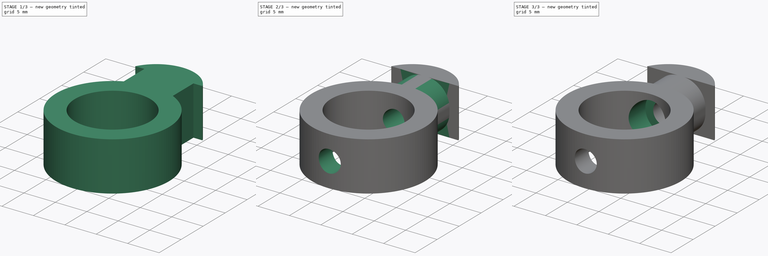
[diagram: build sequence overview — one tinted view per stage of 3, left to right]
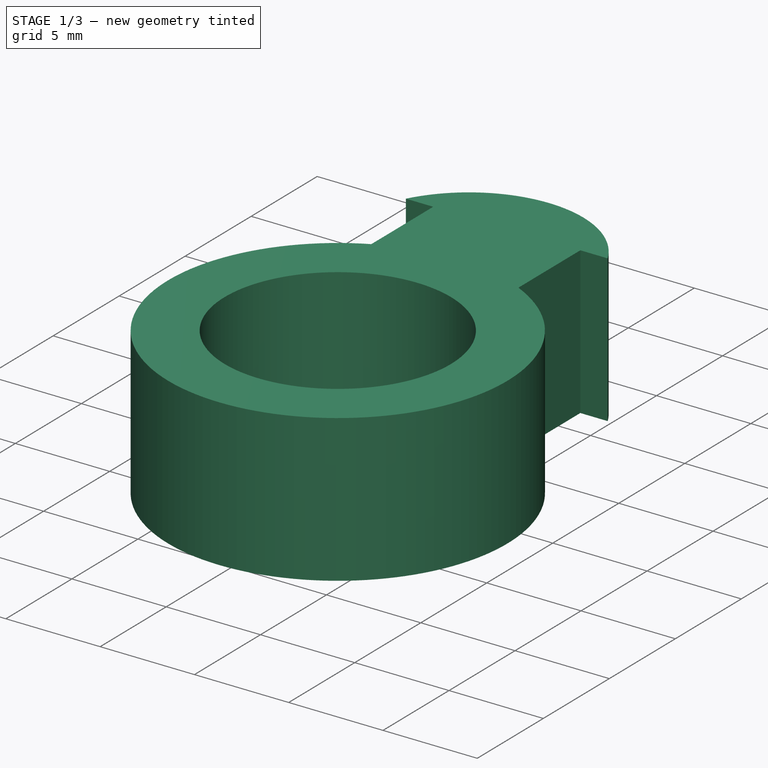
[diagram: stage 1 of 3 — iso view after this stage's code; geometry added in this stage tinted green]
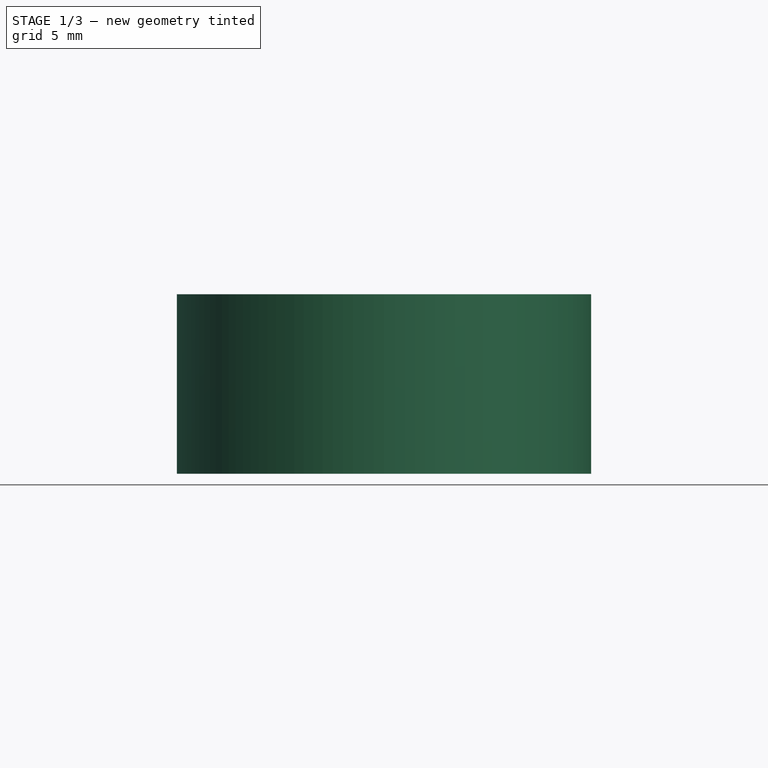
[diagram: stage 1 of 3 — front view after this stage's code; geometry added in this stage tinted green]
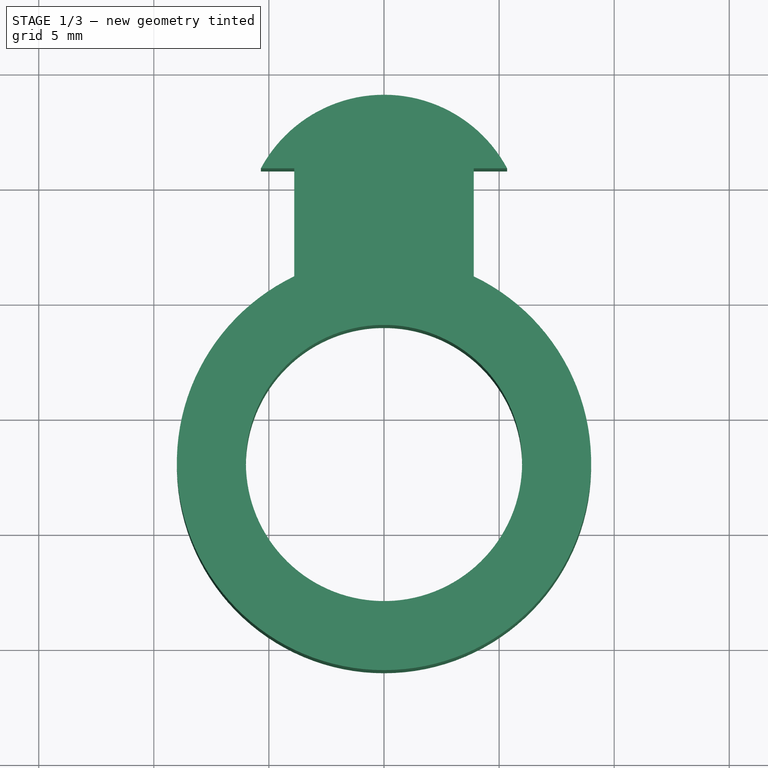
[diagram: stage 1 of 3 — top view after this stage's code; geometry added in this stage tinted green]
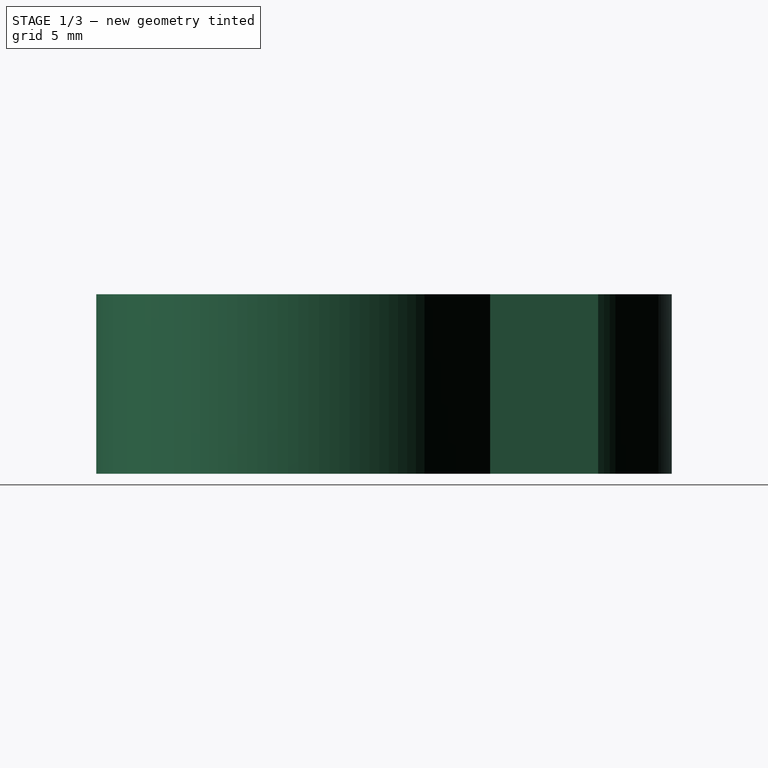
[diagram: stage 1 of 3 — right view after this stage's code; geometry added in this stage tinted green]
FCSTD DOCUMENT  (FreeCAD 0.17R13519 (Git))
Label: Corelia_0_hose_guide
License: All rights reserved
LicenseURL: http://en.wikipedia.org/wiki/All_rights_reserved
objects: Sketcher::SketchObject×5, PartDesign::Pocket×3, PartDesign::Pad×2, PartDesign::Plane×2, PartDesign::Fillet×1, PartDesign::Body×1
note: 19 computed .brp shape members not serialized (recipe doc carries the construction recipe); baked Part::Feature solids carry a one-line shape summary decoded from their .brp

FEATURE [Sketcher::SketchObject] Sketch
  MapMode = 5
  Support = -> [XY_Plane]
  sketch-geometry (7):
    g0: LineSegment StartX=-3.9 StartY=0 StartZ=0 EndX=3.9 EndY=0 EndZ=0
    g1: LineSegment StartX=3.9 StartY=0 StartZ=0 EndX=3.9 EndY=0.8 EndZ=0
    g2: LineSegment StartX=3.9 StartY=0.8 StartZ=0 EndX=5.35 EndY=0.8 EndZ=0
    g3: LineSegment StartX=-3.9 StartY=0 StartZ=0 EndX=-3.9 EndY=0.8 EndZ=0
    g4: LineSegment StartX=-3.9 StartY=0.8 StartZ=0 EndX=-5.35 EndY=0.8 EndZ=0
    g5: ArcOfCircle CenterX=0 CenterY=-2.07227 CenterZ=0 NormalX=0 NormalY=0 NormalZ=1 AngleXU=0 Radius=6.07227 StartAngle=0.492708 EndAngle=2.64888
    g6: LineSegment StartX=0 StartY=0 StartZ=0 EndX=0 EndY=4 EndZ=0
  constraints (22):
    c: PointOnObject(g0,g-1)
    c: Horizontal(g0)
    c: Coincident(g0,g1)
    c: Vertical(g1)
    c: Coincident(g1,g2)
    c: Horizontal(g2)
    c: Coincident(g0,g3)
    c: Vertical(g3)
    c: Coincident(g3,g4)
    c: Horizontal(g4)
    c: Symmetric(g0,g0,g-2)
    c: DistanceX(g0,g0) = 7.8
    c: Equal(g4,g2)
    c: DistanceX(g4,g2) = 10.7
    c: DistanceY(g3,g3) = 0.8
    c: Equal(g3,g1)
    c: Coincident(g5,g4)
    c: Coincident(g5,g2)
    c: Coincident(g6,g-1)
    c: PointOnObject(g6,g5)
    c: Vertical(g6)
    c: DistanceY(g6,g6) = 4
FEATURE [PartDesign::Pad] Pad
  Length = 7.8
  Length2 = 100
  Midplane = true
  Profile = -> Sketch
  Type = 0
FEATURE [Sketcher::SketchObject] Sketch001
  MapMode = 5
  Placement = pos=(0,0,-3.9) rot=(1,0,0;3.14159rad)
  Support = -> [Pad]
  sketch-geometry (5):
    g0: Circle CenterX=0 CenterY=12 CenterZ=0 NormalX=0 NormalY=0 NormalZ=1 AngleXU=0 Radius=6
    g1: ArcOfCircle CenterX=0 CenterY=12 CenterZ=0 NormalX=0 NormalY=0 NormalZ=1 AngleXU=0 Radius=9 StartAngle=5.16058 EndAngle=10.5474
    g2: LineSegment StartX=-3.9 StartY=0 StartZ=0 EndX=3.9 EndY=0 EndZ=0
    g3: LineSegment StartX=3.9 StartY=0 StartZ=0 EndX=3.9 EndY=3.8889 EndZ=0
    g4: LineSegment StartX=-3.9 StartY=3.8889 StartZ=0 EndX=-3.9 EndY=0 EndZ=0
  constraints (15):
    c: PointOnObject(g0,g-2)
    c: Coincident(g1,g0)
    c: Radius(g0) = 6
    c: Radius(g1) = 9
    c: Coincident(g2,g3)
    c: Coincident(g4,g2)
    c: Horizontal(g2)
    c: Vertical(g3)
    c: Vertical(g4)
    c: PointOnObject(g2,g-1)
    c: Symmetric(g2,g2,g-2)
    c: DistanceX(g2,g2) = 7.8
    c: DistanceY(g0) = 12
    c: Coincident(g1,g3)
    c: Coincident(g1,g4)
FEATURE [PartDesign::Pad] Pad001
  BaseFeature = -> Pad
  Length = 7.8
  Length2 = 100
  Profile = -> Sketch001
  Reversed = true
  Type = 0
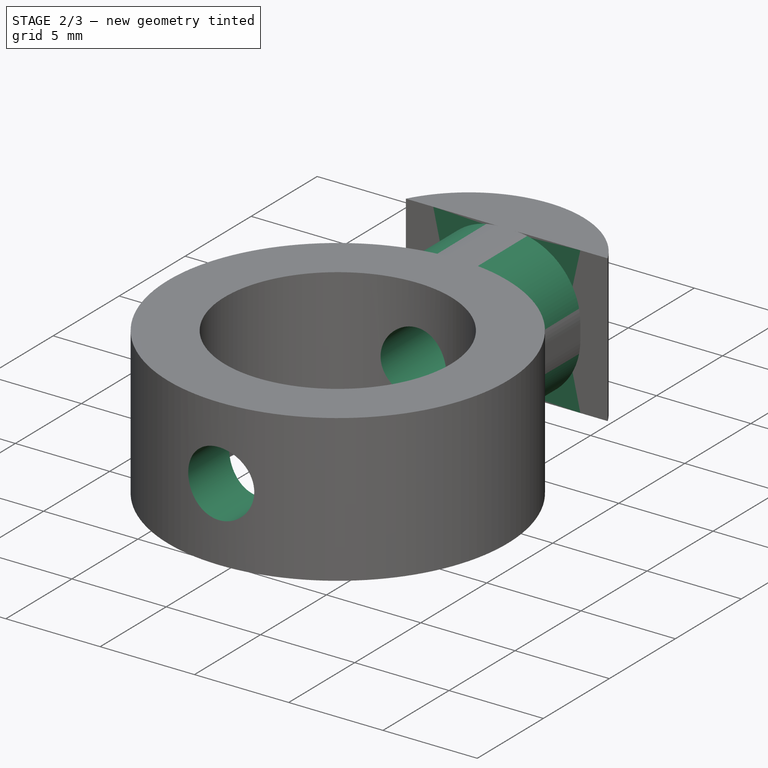
[diagram: stage 2 of 3 — iso view after this stage's code; geometry added in this stage tinted green]
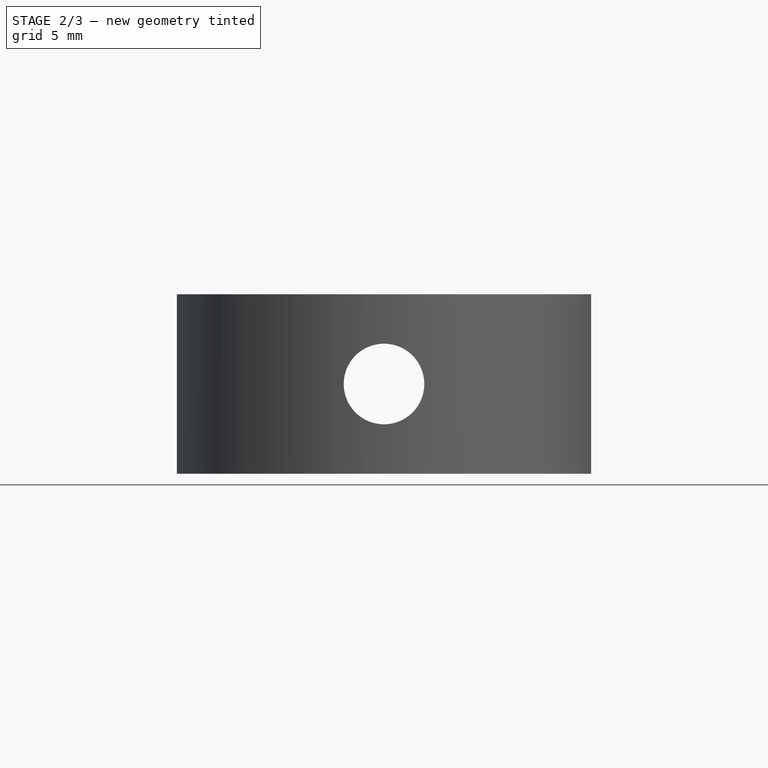
[diagram: stage 2 of 3 — front view after this stage's code; geometry added in this stage tinted green]
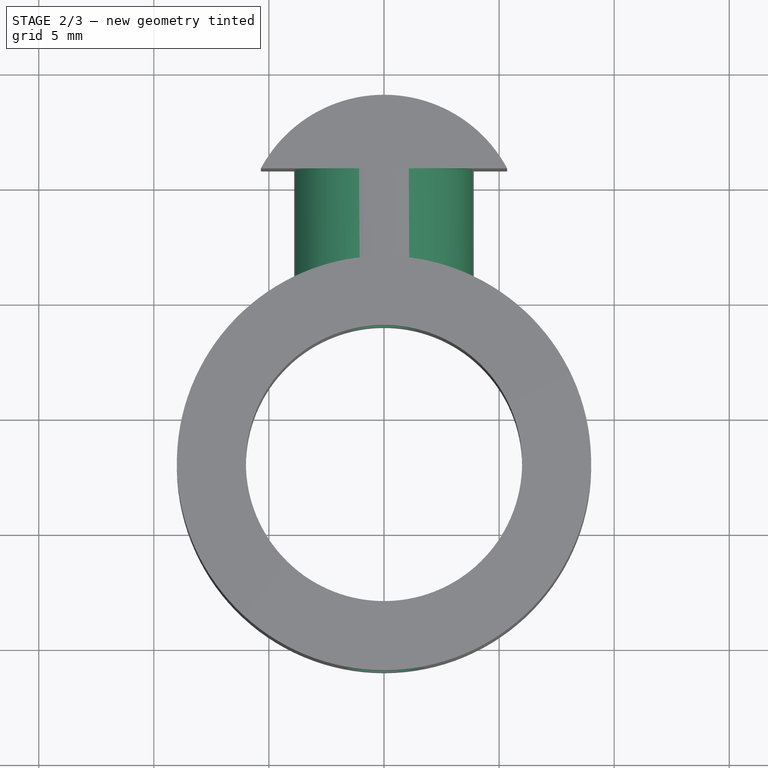
[diagram: stage 2 of 3 — top view after this stage's code; geometry added in this stage tinted green]
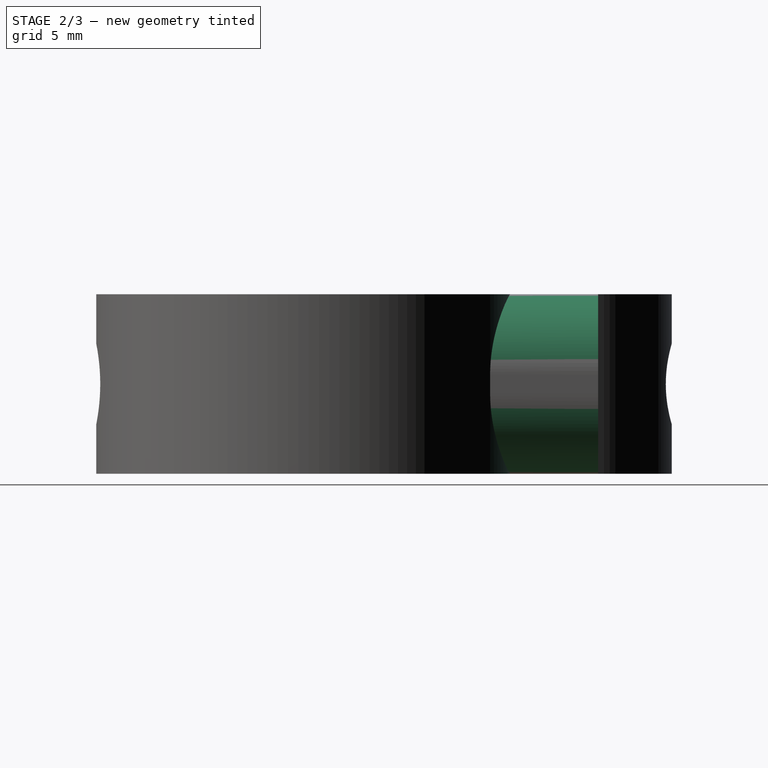
[diagram: stage 2 of 3 — right view after this stage's code; geometry added in this stage tinted green]
FEATURE [PartDesign::Fillet] Fillet
  Base = -> Pad001 [Edge18,Edge19,Edge26,Edge22]
  BaseFeature = -> Pad001
  Radius = 3.5
FEATURE [Sketcher::SketchObject] Sketch002
  MapMode = 5
  Placement = pos=(0,0,0) rot=(1,0,0;1.5708rad)
  Support = -> [XZ_Plane]
  sketch-geometry (1):
    g0: Circle CenterX=0 CenterY=0 CenterZ=0 NormalX=0 NormalY=0 NormalZ=1 AngleXU=0 Radius=1.75
  constraints (3):
    c: PointOnObject(g0,g-1)
    c: Radius(g0) = 1.75
    c: Coincident(g-1,g0)
FEATURE [PartDesign::Pocket] Pocket
  BaseFeature = -> Fillet
  Length = 5
  Length2 = 100
  Midplane = true
  Profile = -> Sketch002
  Type = 1
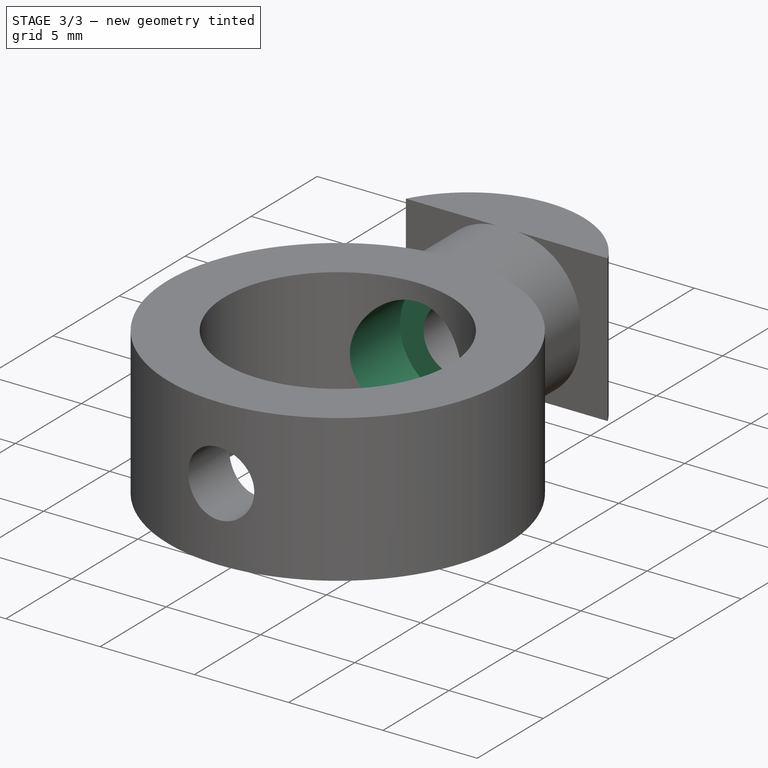
[diagram: stage 3 of 3 — iso view after this stage's code; geometry added in this stage tinted green]
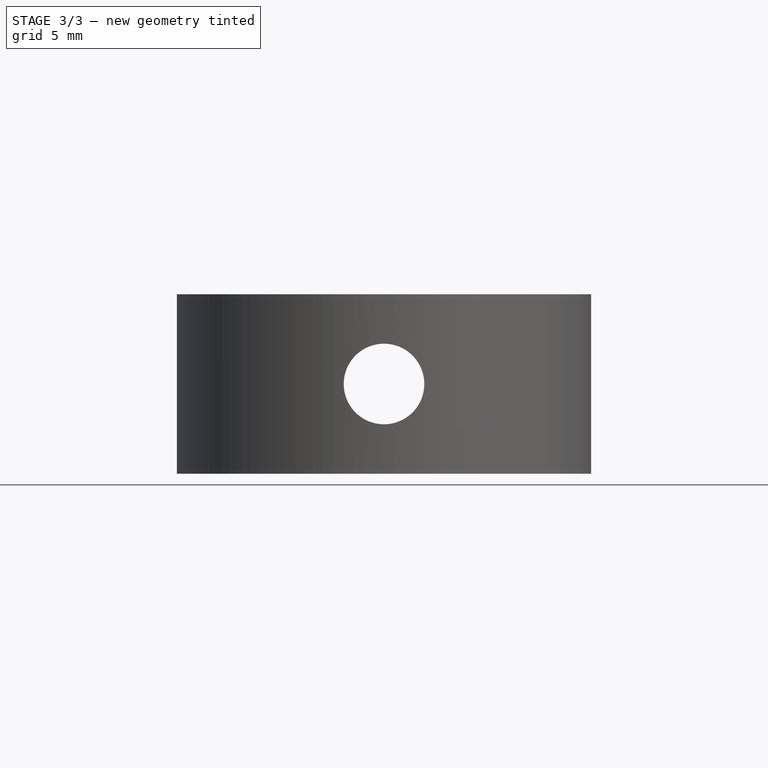
[diagram: stage 3 of 3 — front view after this stage's code; geometry added in this stage tinted green]
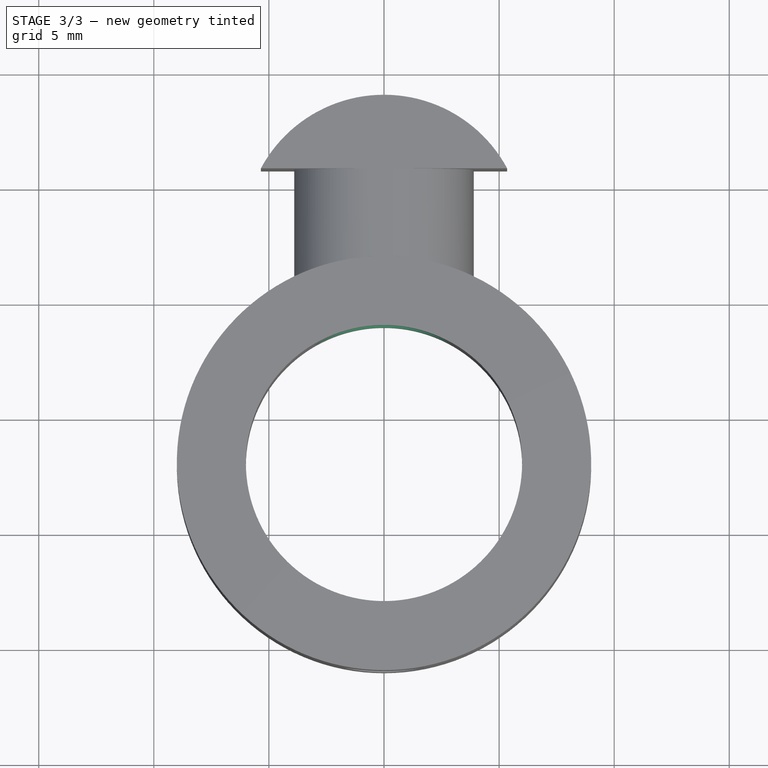
[diagram: stage 3 of 3 — top view after this stage's code; geometry added in this stage tinted green]
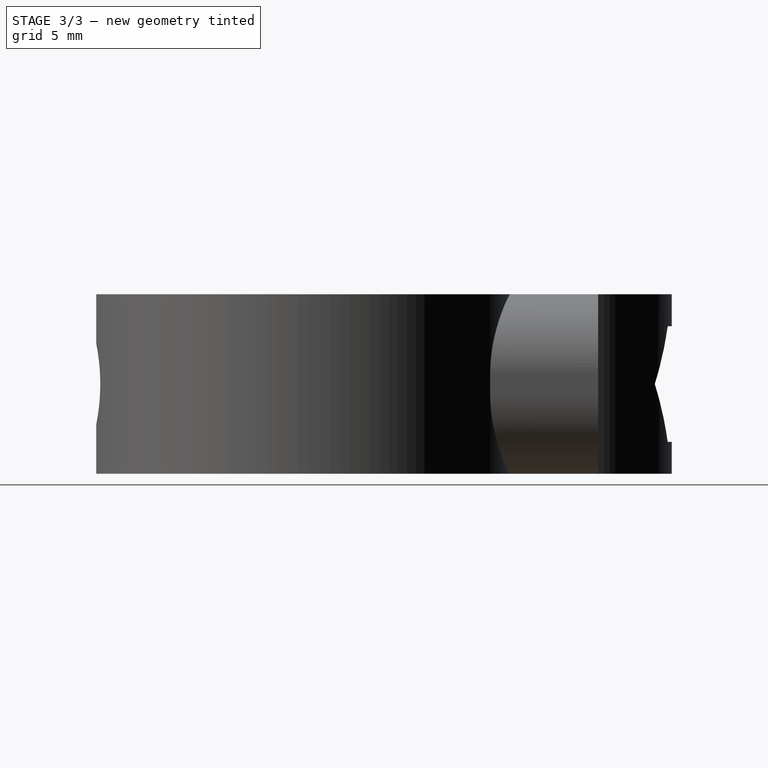
[diagram: stage 3 of 3 — right view after this stage's code; geometry added in this stage tinted green]
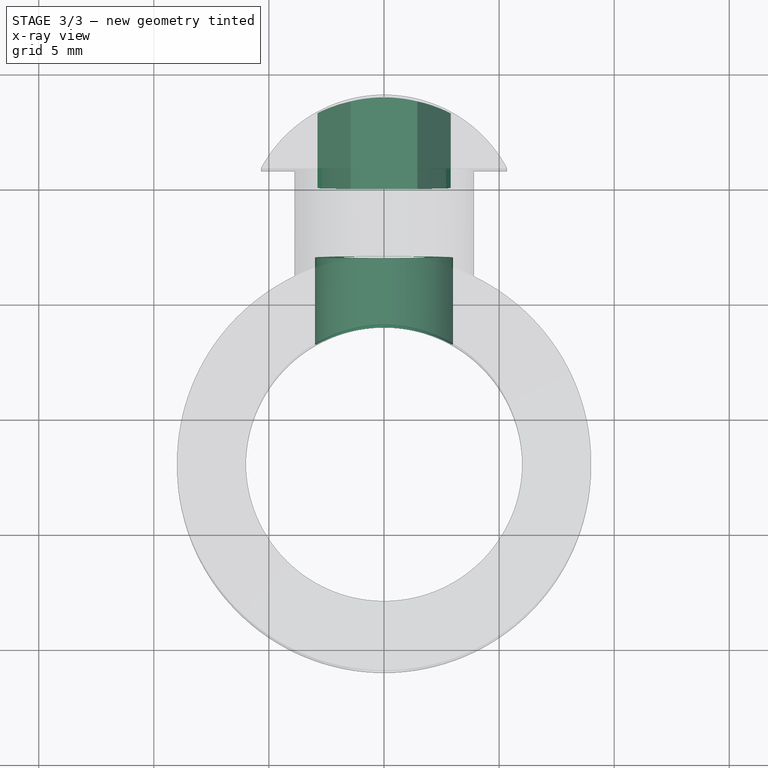
[diagram: stage 3 of 3 — x-ray composite at the top view; earlier geometry ghosted, this stage's added geometry solid]
FEATURE [PartDesign::Plane] DatumPlane
  AttachmentOffset = pos=(0,0,-4) rot=(0,0,1;0rad)
  MapMode = 5
  Placement = pos=(0,4,0) rot=(1,0,0;1.5708rad)
  Support = -> [XZ_Plane]
FEATURE [Sketcher::SketchObject] Sketch003
  MapMode = 5
  Placement = pos=(0,4,0) rot=(1,0,0;1.5708rad)
  Support = -> [DatumPlane]
  sketch-geometry (7):
    g0: LineSegment StartX=-1.45 StartY=-2.51147 StartZ=0 EndX=1.45 EndY=-2.51147 EndZ=0
    g1: LineSegment StartX=1.45 StartY=-2.51147 StartZ=0 EndX=2.9 EndY=0 EndZ=0
    g2: LineSegment StartX=2.9 StartY=0 StartZ=0 EndX=1.45 EndY=2.51147 EndZ=0
    g3: LineSegment StartX=1.45 StartY=2.51147 StartZ=0 EndX=-1.45 EndY=2.51147 EndZ=0
    g4: LineSegment StartX=-1.45 StartY=2.51147 StartZ=0 EndX=-2.9 EndY=0 EndZ=0
    g5: LineSegment StartX=-2.9 StartY=0 StartZ=0 EndX=-1.45 EndY=-2.51147 EndZ=0
    g6: Circle [constr] CenterX=0 CenterY=0 CenterZ=0 NormalX=0 NormalY=0 NormalZ=1 AngleXU=0 Radius=2.9
  constraints (17):
    c: Coincident(g0,g1)
    c: Coincident(g1,g2)
    c: Coincident(g2,g3)
    c: Coincident(g3,g4)
    c: Coincident(g4,g5)
    c: Coincident(g5,g0)
    c: Equal(g0, g1-g5) x5
    c: PointOnObject(g0,g6)
    c: PointOnObject(g1,g6)
    c: PointOnObject(g2,g6)
    c: PointOnObject(g3,g6)
    c: PointOnObject(g4,g6)
    c: PointOnObject(g5,g6)
    c: PointOnObject(g6,g-2)
    c: Horizontal(g0)
    c: Radius(g6) = 2.9
    c: Coincident(g6,g-1)
FEATURE [PartDesign::Pocket] Pocket001
  BaseFeature = -> Pocket
  Length = 4
  Length2 = 100
  Profile = -> Sketch003
  Reversed = true
  Type = 0
FEATURE [PartDesign::Plane] DatumPlane001
  AttachmentOffset = pos=(0,0,3) rot=(0,0,1;0rad)
  MapMode = 5
  Placement = pos=(0,-3,0) rot=(1,0,0;1.5708rad)
  Support = -> [XZ_Plane]
FEATURE [Sketcher::SketchObject] Sketch004
  MapMode = 5
  Placement = pos=(0,-3,0) rot=(1,0,0;1.5708rad)
  Support = -> [DatumPlane001]
  sketch-geometry (1):
    g0: Circle CenterX=0 CenterY=0 CenterZ=0 NormalX=0 NormalY=0 NormalZ=1 AngleXU=0 Radius=3
  constraints (2):
    c: Coincident(g0,g-1)
    c: Radius(g0) = 3
FEATURE [PartDesign::Pocket] Pocket002
  BaseFeature = -> Pocket001
  Length = 6
  Length2 = 100
  Profile = -> Sketch004
  Reversed = true
  Type = 0
FEATURE [PartDesign::Body] Body
  Group = -> [Sketch,Pad,Sketch001,Pad001,Fillet,Sketch002,Pocket,DatumPlane,Sketch003,Pocket001,DatumPlane001,Sketch004,Pocket002]
  Origin = -> Origin
  Tip = -> Pocket002
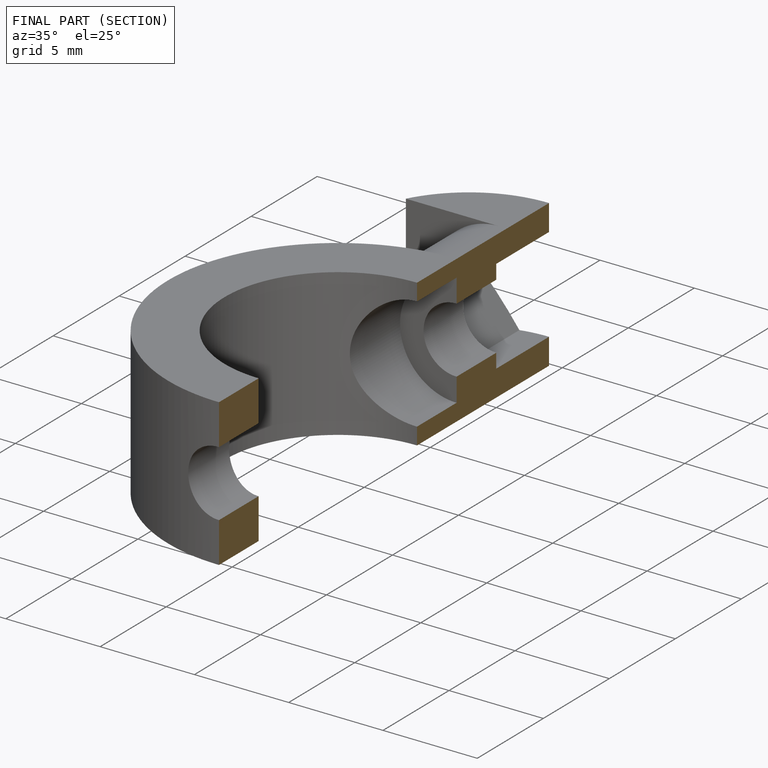
[diagram: finished part — half-section view (interior)]
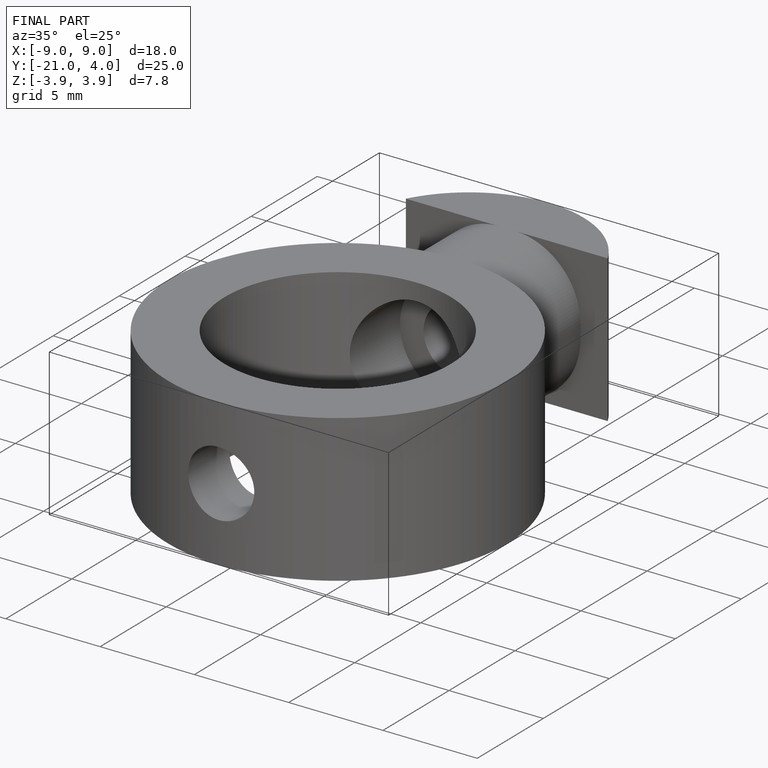
[diagram: finished part — iso view with bounding-box wireframe]
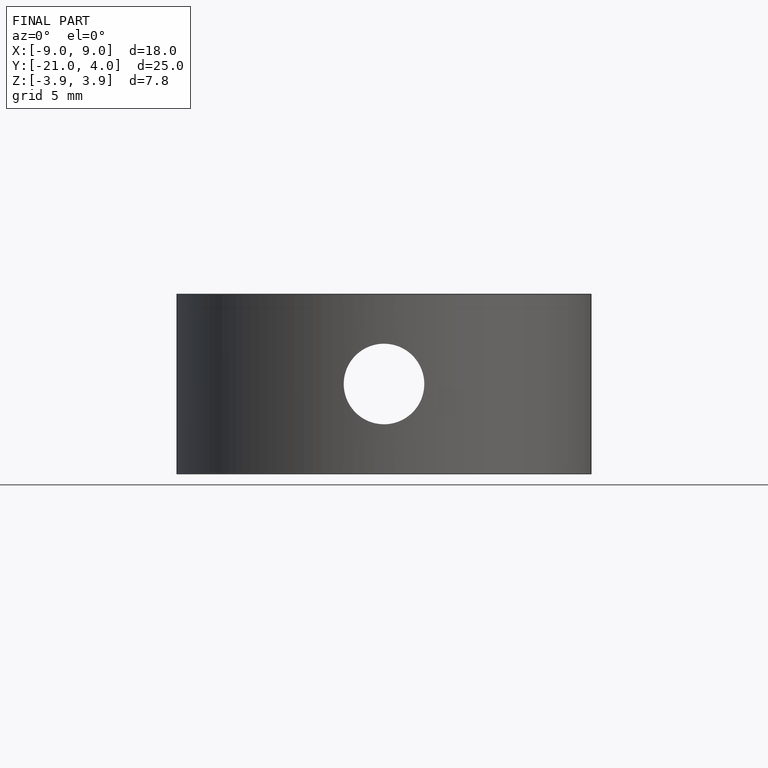
[diagram: finished part — front view with bounding-box wireframe]
